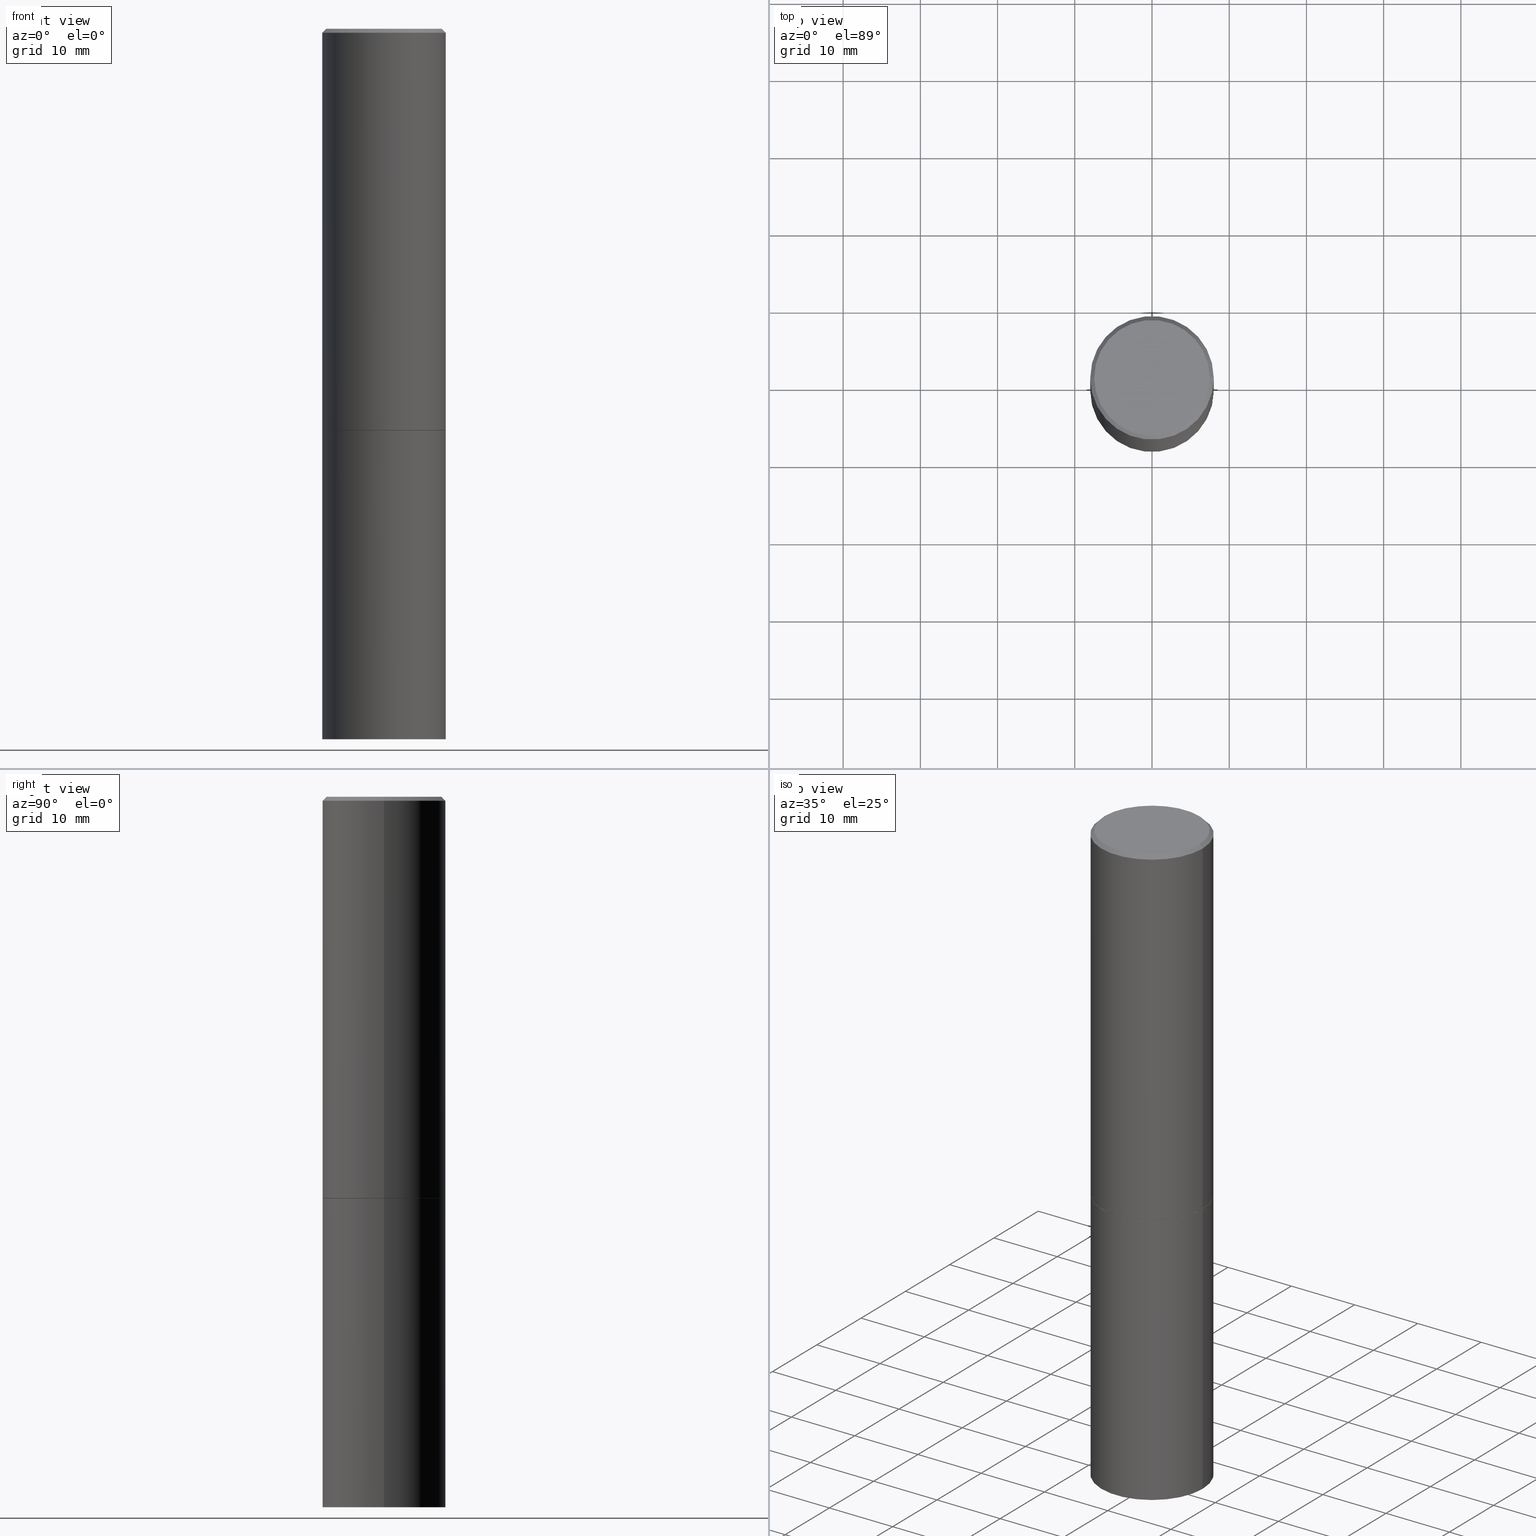
[diagram: canonical four-view strip — front | top / right | iso, engineering-drawing reading convention]
A machine part, canonical four-view strip (front | top / right | iso — engineering-drawing reading convention). The complete STEP part file that produces these views, byte-faithful:
ISO-10303-21;
HEADER;
FILE_DESCRIPTION (( 'STEP AP203' ),
    '1' );
FILE_NAME ('74470.STEP',
    '2024-02-29T11:27:43',
    ( '' ),
    ( '' ),
    'SwSTEP 2.0',
    'SolidWorks 2023',
    '' );
FILE_SCHEMA (( 'CONFIG_CONTROL_DESIGN' ));
ENDSEC;

DATA;
#1 = DIRECTION ( 'NONE',  ( -2.445468806185136597E-29, 3.491481338843145583E-15, 1.000000000000000000 ) ) ;
#2 = CARTESIAN_POINT ( 'NONE',  ( 0.000000000000000000, 0.000000000000000000, 0.000000000000000000 ) ) ;
#3 = DIRECTION ( 'NONE',  ( -2.445468806185136597E-29, 3.491481338843145583E-15, 1.000000000000000000 ) ) ;
#4 = DIRECTION ( 'NONE',  ( -2.445468806185136597E-29, 3.491481338843145583E-15, 1.000000000000000000 ) ) ;
#5 = DIRECTION ( 'NONE',  ( -1.000000000000000000, 6.982962677686265922E-15, -4.876176775795935793E-29 ) ) ;
#6 = CIRCLE ( 'NONE', #120, 0.3149499999999997302 ) ;
#7 = DIRECTION ( 'NONE',  ( -2.438088387897960049E-29, 3.491481338843145188E-15, 1.000000000000000000 ) ) ;
#8 = MECHANICAL_CONTEXT ( 'NONE', #212, 'mechanical' ) ;
#9 = PERSON_AND_ORGANIZATION_ROLE ( 'design_owner' ) ;
#10 = ORIENTED_EDGE ( 'NONE', *, *, #193, .F. ) ;
#11 = DIRECTION ( 'NONE',  ( 0.000000000000000000, 0.000000000000000000, 1.000000000000000000 ) ) ;
#12 = ORIENTED_EDGE ( 'NONE', *, *, #352, .F. ) ;
#13 =( LENGTH_UNIT ( ) NAMED_UNIT ( * ) SI_UNIT ( $, .METRE. ) );
#14 = AXIS2_PLACEMENT_3D ( 'NONE', #284, #310, #199 ) ;
#15 = CALENDAR_DATE ( 2024, 29, 2 ) ;
#16 = APPROVAL_PERSON_ORGANIZATION ( #191, #56, #46 ) ;
#17 = DIRECTION ( 'NONE',  ( 1.000000000000000000, -6.982962677686265922E-15, 4.876176775795935232E-29 ) ) ;
#18 = PERSON_AND_ORGANIZATION ( #34, #247 ) ;
#19 = DIRECTION ( 'NONE',  ( 2.445468806185136597E-29, -3.491481338843145583E-15, -1.000000000000000000 ) ) ;
#20 = EDGE_CURVE ( 'NONE', #244, #129, #348, .T. ) ;
#21 = COORDINATED_UNIVERSAL_TIME_OFFSET ( 5, 0, .BEHIND. ) ;
#22 = DIRECTION ( 'NONE',  ( 1.000000000000000000, -6.982962677686264344E-15, 0.000000000000000000 ) ) ;
#23 = COORDINATED_UNIVERSAL_TIME_OFFSET ( 5, 0, .BEHIND. ) ;
#24 = ORIENTED_EDGE ( 'NONE', *, *, #181, .T. ) ;
#25 = LOCAL_TIME ( 6, 27, 43.00000000000000000, #218 ) ;
#26 = ADVANCED_FACE ( 'NONE', ( #131 ), #232, .T. ) ;
#27 = DIRECTION ( 'NONE',  ( -1.000000000000000000, 6.982962677686265922E-15, -4.876176775795935793E-29 ) ) ;
#28 = DIRECTION ( 'NONE',  ( 1.000000000000000000, -6.982962677686266711E-15, 0.000000000000000000 ) ) ;
#29 = DIRECTION ( 'NONE',  ( -2.445468806185136877E-29, 3.491481338843145188E-15, 1.000000000000000000 ) ) ;
#30 = DIRECTION ( 'NONE',  ( -2.445468806185136597E-29, 3.491481338843145583E-15, 1.000000000000000000 ) ) ;
#31 = ADVANCED_FACE ( 'NONE', ( #81 ), #190, .F. ) ;
#32 = DIRECTION ( 'NONE',  ( 1.000000000000000000, -6.982962677686264344E-15, 0.000000000000000000 ) ) ;
#33 = CYLINDRICAL_SURFACE ( 'NONE', #14, 0.3149499999999998967 ) ;
#34 = PERSON ( 'UNSPECIFIED', 'UNSPECIFIED', 'UNSPECIFIED', ('UNSPECIFIED'), ('UNSPECIFIED'), ('UNSPECIFIED') ) ;
#35 = VECTOR ( 'NONE', #124, 39.37007874015748143 ) ;
#36 = DIRECTION ( 'NONE',  ( 0.7071067811865466846, -7.319954787623252890E-15, -0.7071067811865483499 ) ) ;
#37 = APPROVAL_STATUS ( 'not_yet_approved' ) ;
#38 = EDGE_LOOP ( 'NONE', ( #246, #94 ) ) ;
#39 =( CONVERSION_BASED_UNIT ( 'INCH', #231 ) LENGTH_UNIT ( ) NAMED_UNIT ( #174 ) );
#40 = CIRCLE ( 'NONE', #265, 0.2949499999999997124 ) ;
#41 = ORIENTED_EDGE ( 'NONE', *, *, #305, .F. ) ;
#42 = ORIENTED_EDGE ( 'NONE', *, *, #305, .T. ) ;
#43 = APPLICATION_PROTOCOL_DEFINITION ( 'international standard', 'config_control_design', 1994, #212 ) ;
#44 = ORIENTED_EDGE ( 'NONE', *, *, #364, .F. ) ;
#45 = AXIS2_PLACEMENT_3D ( 'NONE', #270, #19, #50 ) ;
#46 = APPROVAL_ROLE ( '' ) ;
#47 = CARTESIAN_POINT ( 'NONE',  ( -0.3149500000000000077, -1.369195024882416092E-15, -2.046199999999999797 ) ) ;
#48 = LOCAL_TIME ( 6, 27, 43.00000000000000000, #134 ) ;
#49 = VERTEX_POINT ( 'NONE', #133 ) ;
#50 = DIRECTION ( 'NONE',  ( -1.000000000000000000, 6.982962677686266711E-15, 0.000000000000000000 ) ) ;
#51 = VECTOR ( 'NONE', #36, 39.37007874015748143 ) ;
#52 = FACE_OUTER_BOUND ( 'NONE', #68, .T. ) ;
#53 = PLANE ( 'NONE',  #262 ) ;
#54 = DIRECTION ( 'NONE',  ( 1.000000000000000000, -6.982962677686264344E-15, 0.000000000000000000 ) ) ;
#55 = APPLICATION_CONTEXT ( 'configuration controlled 3d designs of mechanical parts and assemblies' ) ;
#56 = APPROVAL ( #184, 'UNSPECIFIED' ) ;
#57 = CARTESIAN_POINT ( 'NONE',  ( -0.3149499999999998967, 2.237854346276434801E-15, -1.549218606675782116E-29 ) ) ;
#58 = DIRECTION ( 'NONE',  ( -0.7071067811866199593, 7.493145998870616062E-15, 0.7071067811864750752 ) ) ;
#59 = AXIS2_PLACEMENT_3D ( 'NONE', #173, #237, #175 ) ;
#60 = CARTESIAN_POINT ( 'NONE',  ( 5.006363740022209999E-29, -7.147760596879685046E-15, -2.047199999999999243 ) ) ;
#61 = CARTESIAN_POINT ( 'NONE',  ( -0.3139500000000000068, -4.917011677960851648E-15, -2.047199999999999243 ) ) ;
#62 = ADVANCED_FACE ( 'NONE', ( #306 ), #53, .F. ) ;
#63 = ORIENTED_EDGE ( 'NONE', *, *, #309, .T. ) ;
#64 = AXIS2_PLACEMENT_3D ( 'NONE', #324, #93, #171 ) ;
#65 = PERSON_AND_ORGANIZATION ( #34, #247 ) ;
#66 = PRODUCT_DEFINITION_SHAPE ( 'NONE', 'NONE',  #117 ) ;
#67 = DIRECTION ( 'NONE',  ( 1.000000000000000000, -6.982962677686266711E-15, 0.000000000000000000 ) ) ;
#68 = EDGE_LOOP ( 'NONE', ( #182, #317, #336, #328 ) ) ;
#69 = AXIS2_PLACEMENT_3D ( 'NONE', #159, #249, #22 ) ;
#70 = CARTESIAN_POINT ( 'NONE',  ( 4.890937612370289799E-31, -6.982962677686315028E-17, -0.02000000000000006981 ) ) ;
#71 = ADVANCED_FACE ( 'NONE', ( #139 ), #356, .T. ) ;
#72 = ORIENTED_EDGE ( 'NONE', *, *, #326, .F. ) ;
#73 = CIRCLE ( 'NONE', #64, 0.3149500000000000077 ) ;
#74 = VERTEX_POINT ( 'NONE', #47 ) ;
#75 = AXIS2_PLACEMENT_3D ( 'NONE', #60, #168, #315 ) ;
#76 = DATE_AND_TIME ( #187, #137 ) ;
#77 = EDGE_LOOP ( 'NONE', ( #10, #24, #78, #238 ) ) ;
#78 = ORIENTED_EDGE ( 'NONE', *, *, #345, .T. ) ;
#79 = DATE_AND_TIME ( #15, #260 ) ;
#80 = ORIENTED_EDGE ( 'NONE', *, *, #160, .T. ) ;
#81 = FACE_OUTER_BOUND ( 'NONE', #272, .T. ) ;
#82 = CARTESIAN_POINT ( 'NONE',  ( 5.006363740022211120E-29, -7.147760596879686624E-15, -2.047199999999999687 ) ) ;
#83 = CONICAL_SURFACE ( 'NONE', #325, 0.3149499999999997302, 0.7853981633974471688 ) ;
#84 = DIRECTION ( 'NONE',  ( -0.7071067811865466846, 2.468850131082247989E-15, -0.7071067811865483499 ) ) ;
#85 = EDGE_CURVE ( 'NONE', #216, #129, #366, .T. ) ;
#86 = FACE_OUTER_BOUND ( 'NONE', #38, .T. ) ;
#87 = AXIS2_PLACEMENT_3D ( 'NONE', #230, #30, #54 ) ;
#88 = CARTESIAN_POINT ( 'NONE',  ( -0.3149500000000000077, -7.659098656808343322E-15, -2.047199999999999687 ) ) ;
#89 = CC_DESIGN_APPROVAL ( #281, ( #117 ) ) ;
#90 = LINE ( 'NONE', #61, #274 ) ;
#91 = CIRCLE ( 'NONE', #298, 0.2949499999999997124 ) ;
#92 = DIRECTION ( 'NONE',  ( 1.000000000000000000, 0.000000000000000000, 0.000000000000000000 ) ) ;
#93 = DIRECTION ( 'NONE',  ( -2.445468806185136597E-29, 3.491481338843145583E-15, 1.000000000000000000 ) ) ;
#94 = ORIENTED_EDGE ( 'NONE', *, *, #181, .F. ) ;
#95 = DIRECTION ( 'NONE',  ( 2.445468806185136597E-29, -3.491481338843145583E-15, -1.000000000000000000 ) ) ;
#96 = ORIENTED_EDGE ( 'NONE', *, *, #319, .T. ) ;
#97 = VECTOR ( 'NONE', #304, 39.37007874015748143 ) ;
#98 = APPROVAL_PERSON_ORGANIZATION ( #18, #226, #269 ) ;
#99 = DATE_AND_TIME ( #267, #25 ) ;
#100 = ORIENTED_EDGE ( 'NONE', *, *, #85, .F. ) ;
#101 = ADVANCED_FACE ( 'NONE', ( #52 ), #276, .T. ) ;
#102 = PERSON_AND_ORGANIZATION_ROLE ( 'creator' ) ;
#103 = ORIENTED_EDGE ( 'NONE', *, *, #352, .T. ) ;
#104 = AXIS2_PLACEMENT_3D ( 'NONE', #2, #155, #17 ) ;
#105 = VERTEX_POINT ( 'NONE', #242 ) ;
#106 = PERSON_AND_ORGANIZATION ( #34, #247 ) ;
#107 = CARTESIAN_POINT ( 'NONE',  ( -0.3149500000000000077, 2.237854346276435590E-15, -1.549218606675782676E-29 ) ) ;
#108 = ORIENTED_EDGE ( 'NONE', *, *, #364, .T. ) ;
#109 = DIRECTION ( 'NONE',  ( 1.000000000000000000, -6.982962677686266711E-15, 4.876176775795936353E-29 ) ) ;
#110 = FACE_OUTER_BOUND ( 'NONE', #77, .T. ) ;
#111 = EDGE_CURVE ( 'NONE', #74, #331, #362, .T. ) ;
#112 = CARTESIAN_POINT ( 'NONE',  ( -0.3149500000000000077, -7.659098656808343322E-15, -3.621999999999999886 ) ) ;
#113 = CIRCLE ( 'NONE', #252, 0.3139500000000000068 ) ;
#114 = DIRECTION ( 'NONE',  ( 1.000000000000000000, -6.982962677686265922E-15, 4.876176775795935793E-29 ) ) ;
#115 = CARTESIAN_POINT ( 'NONE',  ( -0.3139500000000000068, -4.911713223612629246E-15, -2.047199999999999243 ) ) ;
#116 = ADVANCED_BREP_SHAPE_REPRESENTATION ( '74470', ( #157, #293, #313 ), #277 ) ;
#117 = PRODUCT_DEFINITION ( 'UNKNOWN', '', #172, #343 ) ;
#118 = LINE ( 'NONE', #178, #51 ) ;
#119 = LINE ( 'NONE', #152, #35 ) ;
#120 = AXIS2_PLACEMENT_3D ( 'NONE', #223, #338, #28 ) ;
#121 = LINE ( 'NONE', #353, #259 ) ;
#122 = VERTEX_POINT ( 'NONE', #164 ) ;
#123 = ADVANCED_FACE ( 'NONE', ( #110 ), #126, .T. ) ;
#124 = DIRECTION ( 'NONE',  ( 0.7071067811866199593, -2.468850131083015945E-15, 0.7071067811864750752 ) ) ;
#125 = ORIENTED_EDGE ( 'NONE', *, *, #250, .T. ) ;
#126 = CONICAL_SURFACE ( 'NONE', #75, 0.3139500000000000068, 0.7853981633975507526 ) ;
#127 = ADVANCED_FACE ( 'NONE', ( #86 ), #196, .F. ) ;
#128 = PERSON_AND_ORGANIZATION_ROLE ( 'design_supplier' ) ;
#129 = VERTEX_POINT ( 'NONE', #88 ) ;
#130 = COORDINATED_UNIVERSAL_TIME_OFFSET ( 5, 0, .BEHIND. ) ;
#131 = FACE_OUTER_BOUND ( 'NONE', #236, .T. ) ;
#132 = PERSON_AND_ORGANIZATION ( #34, #247 ) ;
#133 = CARTESIAN_POINT ( 'NONE',  ( 0.3139500000000000068, -9.340061729539288903E-15, -2.047199999999999243 ) ) ;
#134 = COORDINATED_UNIVERSAL_TIME_OFFSET ( 5, 0, .BEHIND. ) ;
#135 = ORIENTED_EDGE ( 'NONE', *, *, #316, .T. ) ;
#136 = EDGE_CURVE ( 'NONE', #74, #318, #285, .T. ) ;
#137 = LOCAL_TIME ( 6, 27, 43.00000000000000000, #23 ) ;
#138 = CARTESIAN_POINT ( 'NONE',  ( 5.006363740022211120E-29, -7.147760596879686624E-15, -2.047199999999999687 ) ) ;
#139 = FACE_OUTER_BOUND ( 'NONE', #179, .T. ) ;
#140 = PRODUCT ( '74470', '74470', '', ( #8 ) ) ;
#141 = DIRECTION ( 'NONE',  ( -2.445468806185136597E-29, 3.491481338843145583E-15, 1.000000000000000000 ) ) ;
#142 = AXIS2_PLACEMENT_3D ( 'NONE', #347, #206, #239 ) ;
#143 = CYLINDRICAL_SURFACE ( 'NONE', #177, 0.3149500000000000077 ) ;
#144 = PLANE ( 'NONE',  #322 ) ;
#145 = CARTESIAN_POINT ( 'NONE',  ( -0.3149499999999997302, 2.129454468560424601E-15, -0.02000000000000006981 ) ) ;
#146 = LINE ( 'NONE', #225, #289 ) ;
#147 = DIRECTION ( 'NONE',  ( -2.445468806185136597E-29, 3.491481338843145583E-15, 1.000000000000000000 ) ) ;
#148 = APPROVAL_ROLE ( '' ) ;
#149 = EDGE_LOOP ( 'NONE', ( #158, #300, #80, #135 ) ) ;
#150 = AXIS2_PLACEMENT_3D ( 'NONE', #235, #323, #67 ) ;
#151 = APPROVAL_PERSON_ORGANIZATION ( #65, #281, #148 ) ;
#152 = CARTESIAN_POINT ( 'NONE',  ( 0.3139500000000000068, -9.340061729539288903E-15, -2.047199999999999243 ) ) ;
#153 = CC_DESIGN_PERSON_AND_ORGANIZATION_ASSIGNMENT ( #327, #360, ( #117 ) ) ;
#154 =( NAMED_UNIT ( * ) PLANE_ANGLE_UNIT ( ) SI_UNIT ( $, .RADIAN. ) );
#155 = DIRECTION ( 'NONE',  ( -2.445468806185136597E-29, 3.491481338843145583E-15, 1.000000000000000000 ) ) ;
#156 = APPROVAL_DATE_TIME ( #79, #281 ) ;
#157 = MANIFOLD_SOLID_BREP ( 'Body-Move/Copy2[1]', #215 ) ;
#158 = ORIENTED_EDGE ( 'NONE', *, *, #309, .F. ) ;
#159 = CARTESIAN_POINT ( 'NONE',  ( 5.006363740022209999E-29, -7.147760596879685046E-15, -2.047199999999999243 ) ) ;
#160 = EDGE_CURVE ( 'NONE', #105, #331, #166, .T. ) ;
#161 = ORIENTED_EDGE ( 'NONE', *, *, #297, .T. ) ;
#162 = VERTEX_POINT ( 'NONE', #312 ) ;
#163 = ADVANCED_FACE ( 'NONE', ( #346 ), #33, .T. ) ;
#164 = CARTESIAN_POINT ( 'NONE',  ( 0.3149500000000000077, -1.484542950462716186E-14, -3.621999999999999886 ) ) ;
#165 = AXIS2_PLACEMENT_3D ( 'NONE', #299, #192, #188 ) ;
#166 = LINE ( 'NONE', #145, #227 ) ;
#167 = DIRECTION ( 'NONE',  ( -2.445468806185136877E-29, 3.491481338843145188E-15, 1.000000000000000000 ) ) ;
#168 = DIRECTION ( 'NONE',  ( -2.445468806185136597E-29, 3.491481338843145583E-15, 1.000000000000000000 ) ) ;
#169 = AXIS2_PLACEMENT_3D ( 'NONE', #258, #224, #340 ) ;
#170 = CARTESIAN_POINT ( 'NONE',  ( 0.000000000000000000, 0.000000000000000000, 0.000000000000000000 ) ) ;
#171 = DIRECTION ( 'NONE',  ( 1.000000000000000000, -6.982962677686266711E-15, 0.000000000000000000 ) ) ;
#172 = PRODUCT_DEFINITION_FORMATION_WITH_SPECIFIED_SOURCE ( 'ANY', '', #140, .NOT_KNOWN. ) ;
#173 = CARTESIAN_POINT ( 'NONE',  ( 8.857488016002564476E-29, -1.264614540928987199E-14, -3.621999999999999886 ) ) ;
#174 = DIMENSIONAL_EXPONENTS ( 1.000000000000000000, 0.000000000000000000, 0.000000000000000000, 0.000000000000000000, 0.000000000000000000, 0.000000000000000000, 0.000000000000000000 ) ;
#175 = DIRECTION ( 'NONE',  ( 1.000000000000000000, -6.982962677686263555E-15, 0.000000000000000000 ) ) ;
#176 = VERTEX_POINT ( 'NONE', #115 ) ;
#177 = AXIS2_PLACEMENT_3D ( 'NONE', #308, #4, #109 ) ;
#178 = CARTESIAN_POINT ( 'NONE',  ( 0.3149499999999997302, -2.230543471175005478E-15, -0.02000000000000006981 ) ) ;
#179 = EDGE_LOOP ( 'NONE', ( #273, #296, #44, #351 ) ) ;
#180 = SECURITY_CLASSIFICATION ( '', '', #301 ) ;
#181 = EDGE_CURVE ( 'NONE', #176, #49, #222, .T. ) ;
#182 = ORIENTED_EDGE ( 'NONE', *, *, #111, .F. ) ;
#183 = CC_DESIGN_DATE_AND_TIME_ASSIGNMENT ( #99, #275, ( #180 ) ) ;
#184 = APPROVAL_STATUS ( 'not_yet_approved' ) ;
#185 = ORIENTED_EDGE ( 'NONE', *, *, #20, .T. ) ;
#186 = ADVANCED_FACE ( 'NONE', ( #282 ), #143, .T. ) ;
#187 = CALENDAR_DATE ( 2024, 29, 2 ) ;
#188 = DIRECTION ( 'NONE',  ( -1.000000000000000000, 6.982962677686265922E-15, -4.876176775795935793E-29 ) ) ;
#189 = CALENDAR_DATE ( 2024, 29, 2 ) ;
#190 = PLANE ( 'NONE',  #165 ) ;
#191 = PERSON_AND_ORGANIZATION ( #34, #247 ) ;
#192 = DIRECTION ( 'NONE',  ( 2.438088387897960049E-29, -3.491481338843145188E-15, -1.000000000000000000 ) ) ;
#193 = EDGE_CURVE ( 'NONE', #176, #74, #90, .T. ) ;
#194 = CC_DESIGN_SECURITY_CLASSIFICATION ( #180, ( #172 ) ) ;
#195 = FACE_OUTER_BOUND ( 'NONE', #251, .T. ) ;
#196 = PLANE ( 'NONE',  #198 ) ;
#197 = UNCERTAINTY_MEASURE_WITH_UNIT (LENGTH_MEASURE( 1.000000000000000082E-05 ), #39, 'distance_accuracy_value', 'NONE');
#198 = AXIS2_PLACEMENT_3D ( 'NONE', #254, #7, #114 ) ;
#199 = DIRECTION ( 'NONE',  ( 1.000000000000000000, -6.982962677686265922E-15, 4.876176775795935232E-29 ) ) ;
#200 = CC_DESIGN_PERSON_AND_ORGANIZATION_ASSIGNMENT ( #271, #102, ( #172 ) ) ;
#201 = FACE_OUTER_BOUND ( 'NONE', #321, .T. ) ;
#202 = CARTESIAN_POINT ( 'NONE',  ( -2.087702828670439639E-46, 2.980686340760894400E-32, 8.537024980200822558E-18 ) ) ;
#203 = APPLICATION_PROTOCOL_DEFINITION ( 'international standard', 'config_control_design', 1994, #55 ) ;
#204 = CC_DESIGN_APPROVAL ( #56, ( #180 ) ) ;
#205 = ORIENTED_EDGE ( 'NONE', *, *, #319, .F. ) ;
#206 = DIRECTION ( 'NONE',  ( -2.445468806185136597E-29, 3.491481338843145583E-15, 1.000000000000000000 ) ) ;
#207 = EDGE_LOOP ( 'NONE', ( #125, #295 ) ) ;
#208 = AXIS2_PLACEMENT_3D ( 'NONE', #82, #141, #253 ) ;
#209 = ORIENTED_EDGE ( 'NONE', *, *, #85, .T. ) ;
#210 = CARTESIAN_POINT ( 'NONE',  ( 0.3149499999999997302, -2.230543471175005478E-15, -0.02000000000000006981 ) ) ;
#211 = DATE_TIME_ROLE ( 'creation_date' ) ;
#212 = APPLICATION_CONTEXT ( 'configuration controlled 3d designs of mechanical parts and assemblies' ) ;
#213 = ORIENTED_EDGE ( 'NONE', *, *, #220, .F. ) ;
#214 = ORIENTED_EDGE ( 'NONE', *, *, #20, .F. ) ;
#215 = CLOSED_SHELL ( 'NONE', ( #291, #268, #31, #186 ) ) ;
#216 = VERTEX_POINT ( 'NONE', #112 ) ;
#217 = CIRCLE ( 'NONE', #59, 0.3149500000000000077 ) ;
#218 = COORDINATED_UNIVERSAL_TIME_OFFSET ( 5, 0, .BEHIND. ) ;
#219 = DIRECTION ( 'NONE',  ( 1.000000000000000000, -6.982962677686269866E-15, 0.000000000000000000 ) ) ;
#220 = EDGE_CURVE ( 'NONE', #122, #244, #146, .T. ) ;
#221 = ORIENTED_EDGE ( 'NONE', *, *, #297, .F. ) ;
#222 = CIRCLE ( 'NONE', #87, 0.3139500000000000068 ) ;
#223 = CARTESIAN_POINT ( 'NONE',  ( 4.890937612370289799E-31, -6.982962677686315028E-17, -0.02000000000000006981 ) ) ;
#224 = DIRECTION ( 'NONE',  ( -2.445468806185136597E-29, 3.491481338843145583E-15, 1.000000000000000000 ) ) ;
#225 = CARTESIAN_POINT ( 'NONE',  ( 0.3149500000000000077, -2.199284095337289871E-15, 1.535751875536930130E-29 ) ) ;
#226 = APPROVAL ( #333, 'UNSPECIFIED' ) ;
#227 = VECTOR ( 'NONE', #84, 39.37007874015748143 ) ;
#228 = AXIS2_PLACEMENT_3D ( 'NONE', #138, #1, #219 ) ;
#229 = CARTESIAN_POINT ( 'NONE',  ( 5.006363740022209999E-29, -7.147760596879685046E-15, -2.047199999999999243 ) ) ;
#230 = CARTESIAN_POINT ( 'NONE',  ( 5.006363740022209999E-29, -7.147760596879685046E-15, -2.047199999999999243 ) ) ;
#231 = LENGTH_MEASURE_WITH_UNIT ( LENGTH_MEASURE( 0.02539999999999999897 ), #13 );
#232 = CONICAL_SURFACE ( 'NONE', #45, 0.3149499999999997302, 0.7853981633974471688 ) ;
#233 = DIRECTION ( 'NONE',  ( 1.000000000000000000, -6.982962677686267499E-15, 4.876053491004739391E-29 ) ) ;
#234 = EDGE_LOOP ( 'NONE', ( #108, #292, #221, #72 ) ) ;
#235 = CARTESIAN_POINT ( 'NONE',  ( 4.890937612370289799E-31, -6.982962677686315028E-17, -0.02000000000000006981 ) ) ;
#236 = EDGE_LOOP ( 'NONE', ( #334, #63, #161, #278 ) ) ;
#237 = DIRECTION ( 'NONE',  ( -2.445468806185136597E-29, 3.491481338843145583E-15, 1.000000000000000000 ) ) ;
#238 = ORIENTED_EDGE ( 'NONE', *, *, #136, .F. ) ;
#239 = DIRECTION ( 'NONE',  ( 1.000000000000000000, -6.982962677686263555E-15, 0.000000000000000000 ) ) ;
#240 = VECTOR ( 'NONE', #29, 39.37007874015748143 ) ;
#241 = DATE_AND_TIME ( #335, #48 ) ;
#242 = CARTESIAN_POINT ( 'NONE',  ( -0.2949499999999997124, 2.094539655171993740E-15, 8.537024980186296424E-18 ) ) ;
#243 = EDGE_CURVE ( 'NONE', #49, #176, #113, .T. ) ;
#244 = VERTEX_POINT ( 'NONE', #341 ) ;
#245 = DATE_AND_TIME ( #189, #307 ) ;
#246 = ORIENTED_EDGE ( 'NONE', *, *, #243, .F. ) ;
#247 = ORGANIZATION ( 'UNSPECIFIED', 'UNSPECIFIED', '' ) ;
#248 = SHAPE_DEFINITION_REPRESENTATION ( #66, #116 ) ;
#249 = DIRECTION ( 'NONE',  ( -2.445468806185136597E-29, 3.491481338843145583E-15, 1.000000000000000000 ) ) ;
#250 = EDGE_CURVE ( 'NONE', #105, #162, #91, .T. ) ;
#251 = EDGE_LOOP ( 'NONE', ( #12, #205 ) ) ;
#252 = AXIS2_PLACEMENT_3D ( 'NONE', #229, #3, #32 ) ;
#253 = DIRECTION ( 'NONE',  ( 1.000000000000000000, -6.982962677686269866E-15, 0.000000000000000000 ) ) ;
#254 = CARTESIAN_POINT ( 'NONE',  ( 5.006363740022211680E-29, -7.147760596879688202E-15, -2.047200000000000131 ) ) ;
#255 = CC_DESIGN_PERSON_AND_ORGANIZATION_ASSIGNMENT ( #287, #9, ( #140 ) ) ;
#256 = DIRECTION ( 'NONE',  ( 2.438088387897960049E-29, -3.491481338843145188E-15, -1.000000000000000000 ) ) ;
#257 = CIRCLE ( 'NONE', #150, 0.3149499999999997302 ) ;
#258 = CARTESIAN_POINT ( 'NONE',  ( 5.003918271216025517E-29, -7.144269115540843617E-15, -2.046199999999999797 ) ) ;
#259 = VECTOR ( 'NONE', #288, 39.37007874015748143 ) ;
#260 = LOCAL_TIME ( 6, 27, 43.00000000000000000, #21 ) ;
#261 = DIRECTION ( 'NONE',  ( 1.000000000000000000, -6.982962677686266711E-15, 4.876176775795936353E-29 ) ) ;
#262 = AXIS2_PLACEMENT_3D ( 'NONE', #363, #302, #27 ) ;
#263 = CARTESIAN_POINT ( 'NONE',  ( 0.3149500000000000077, -9.343553210878133488E-15, -2.046199999999999797 ) ) ;
#264 = CC_DESIGN_PERSON_AND_ORGANIZATION_ASSIGNMENT ( #106, #128, ( #172 ) ) ;
#265 = AXIS2_PLACEMENT_3D ( 'NONE', #355, #147, #233 ) ;
#266 = CC_DESIGN_DATE_AND_TIME_ASSIGNMENT ( #76, #211, ( #117 ) ) ;
#267 = CALENDAR_DATE ( 2024, 29, 2 ) ;
#268 = ADVANCED_FACE ( 'NONE', ( #195 ), #144, .T. ) ;
#269 = APPROVAL_ROLE ( '' ) ;
#270 = CARTESIAN_POINT ( 'NONE',  ( 4.890937612370289799E-31, -6.982962677686315028E-17, -0.02000000000000006981 ) ) ;
#271 = PERSON_AND_ORGANIZATION ( #34, #247 ) ;
#272 = EDGE_LOOP ( 'NONE', ( #185, #42 ) ) ;
#273 = ORIENTED_EDGE ( 'NONE', *, *, #243, .T. ) ;
#274 = VECTOR ( 'NONE', #58, 39.37007874015748143 ) ;
#275 = DATE_TIME_ROLE ( 'classification_date' ) ;
#276 = CYLINDRICAL_SURFACE ( 'NONE', #104, 0.3149499999999998967 ) ;
#277 =( GEOMETRIC_REPRESENTATION_CONTEXT ( 3 ) GLOBAL_UNCERTAINTY_ASSIGNED_CONTEXT ( ( #197 ) ) GLOBAL_UNIT_ASSIGNED_CONTEXT ( ( #39, #154, #290 ) ) REPRESENTATION_CONTEXT ( 'NONE', 'WORKASPACE' ) );
#278 = ORIENTED_EDGE ( 'NONE', *, *, #160, .F. ) ;
#279 = CARTESIAN_POINT ( 'NONE',  ( 2.199284095337378223E-15, 0.3149499999999873512, -3.622000000000000774 ) ) ;
#280 = AXIS2_PLACEMENT_3D ( 'NONE', #170, #286, #261 ) ;
#281 = APPROVAL ( #37, 'UNSPECIFIED' ) ;
#282 = FACE_OUTER_BOUND ( 'NONE', #354, .T. ) ;
#283 = DIRECTION ( 'NONE',  ( 1.000000000000000000, -6.982962677686267499E-15, 4.876053491004739391E-29 ) ) ;
#284 = CARTESIAN_POINT ( 'NONE',  ( 0.000000000000000000, 0.000000000000000000, 0.000000000000000000 ) ) ;
#285 = CIRCLE ( 'NONE', #169, 0.3149500000000000077 ) ;
#286 = DIRECTION ( 'NONE',  ( -2.445468806185136597E-29, 3.491481338843145583E-15, 1.000000000000000000 ) ) ;
#287 = PERSON_AND_ORGANIZATION ( #34, #247 ) ;
#288 = DIRECTION ( 'NONE',  ( -2.445468806185136877E-29, 3.491481338843145188E-15, 1.000000000000000000 ) ) ;
#289 = VECTOR ( 'NONE', #167, 39.37007874015748143 ) ;
#290 =( NAMED_UNIT ( * ) SI_UNIT ( $, .STERADIAN. ) SOLID_ANGLE_UNIT ( ) );
#291 = ADVANCED_FACE ( 'NONE', ( #201 ), #314, .T. ) ;
#292 = ORIENTED_EDGE ( 'NONE', *, *, #111, .T. ) ;
#293 = MANIFOLD_SOLID_BREP ( 'Body-Move/Copy2[2]', #311 ) ;
#294 = DIRECTION ( 'NONE',  ( -1.000000000000000000, 6.982962677686266711E-15, 0.000000000000000000 ) ) ;
#295 = ORIENTED_EDGE ( 'NONE', *, *, #332, .T. ) ;
#296 = ORIENTED_EDGE ( 'NONE', *, *, #193, .T. ) ;
#297 = EDGE_CURVE ( 'NONE', #330, #331, #6, .T. ) ;
#298 = AXIS2_PLACEMENT_3D ( 'NONE', #202, #342, #283 ) ;
#299 = CARTESIAN_POINT ( 'NONE',  ( 2.199284095337339175E-15, 0.3149499999999928468, -2.047200000000001019 ) ) ;
#300 = ORIENTED_EDGE ( 'NONE', *, *, #250, .F. ) ;
#301 = SECURITY_CLASSIFICATION_LEVEL ( 'unclassified' ) ;
#302 = DIRECTION ( 'NONE',  ( 2.438088387897960049E-29, -3.491481338843145188E-15, -1.000000000000000000 ) ) ;
#303 = PERSON_AND_ORGANIZATION_ROLE ( 'classification_officer' ) ;
#304 = DIRECTION ( 'NONE',  ( -2.445468806185136877E-29, 3.491481338843145188E-15, 1.000000000000000000 ) ) ;
#305 = EDGE_CURVE ( 'NONE', #129, #244, #329, .T. ) ;
#306 = FACE_OUTER_BOUND ( 'NONE', #207, .T. ) ;
#307 = LOCAL_TIME ( 6, 27, 43.00000000000000000, #130 ) ;
#308 = CARTESIAN_POINT ( 'NONE',  ( 0.000000000000000000, 0.000000000000000000, 0.000000000000000000 ) ) ;
#309 = EDGE_CURVE ( 'NONE', #162, #330, #118, .T. ) ;
#310 = DIRECTION ( 'NONE',  ( -2.445468806185136597E-29, 3.491481338843145583E-15, 1.000000000000000000 ) ) ;
#311 = CLOSED_SHELL ( 'NONE', ( #71, #163, #26, #339, #101, #123, #127, #62 ) ) ;
#312 = CARTESIAN_POINT ( 'NONE',  ( 0.2949499999999997124, -2.127023677808858103E-15, 8.537024980215462707E-18 ) ) ;
#313 = AXIS2_PLACEMENT_3D ( 'NONE', #349, #11, #92 ) ;
#314 = CYLINDRICAL_SURFACE ( 'NONE', #280, 0.3149500000000000077 ) ;
#315 = DIRECTION ( 'NONE',  ( 1.000000000000000000, -6.982962677686264344E-15, 0.000000000000000000 ) ) ;
#316 = EDGE_CURVE ( 'NONE', #331, #330, #257, .T. ) ;
#317 = ORIENTED_EDGE ( 'NONE', *, *, #136, .T. ) ;
#318 = VERTEX_POINT ( 'NONE', #263 ) ;
#319 = EDGE_CURVE ( 'NONE', #216, #122, #337, .T. ) ;
#320 = CARTESIAN_POINT ( 'NONE',  ( -0.3149499999999997302, 2.129454468560424601E-15, -0.02000000000000006981 ) ) ;
#321 = EDGE_LOOP ( 'NONE', ( #103, #209, #214, #213 ) ) ;
#322 = AXIS2_PLACEMENT_3D ( 'NONE', #279, #256, #5 ) ;
#323 = DIRECTION ( 'NONE',  ( -2.445468806185136597E-29, 3.491481338843145583E-15, 1.000000000000000000 ) ) ;
#324 = CARTESIAN_POINT ( 'NONE',  ( 5.003918271216025517E-29, -7.144269115540843617E-15, -2.046199999999999797 ) ) ;
#325 = AXIS2_PLACEMENT_3D ( 'NONE', #70, #95, #294 ) ;
#326 = EDGE_CURVE ( 'NONE', #318, #330, #121, .T. ) ;
#327 = PERSON_AND_ORGANIZATION ( #34, #247 ) ;
#328 = ORIENTED_EDGE ( 'NONE', *, *, #316, .F. ) ;
#329 = CIRCLE ( 'NONE', #208, 0.3149500000000000077 ) ;
#330 = VERTEX_POINT ( 'NONE', #210 ) ;
#331 = VERTEX_POINT ( 'NONE', #320 ) ;
#332 = EDGE_CURVE ( 'NONE', #162, #105, #40, .T. ) ;
#333 = APPROVAL_STATUS ( 'not_yet_approved' ) ;
#334 = ORIENTED_EDGE ( 'NONE', *, *, #332, .F. ) ;
#335 = CALENDAR_DATE ( 2024, 29, 2 ) ;
#336 = ORIENTED_EDGE ( 'NONE', *, *, #326, .T. ) ;
#337 = CIRCLE ( 'NONE', #142, 0.3149500000000000077 ) ;
#338 = DIRECTION ( 'NONE',  ( -2.445468806185136597E-29, 3.491481338843145583E-15, 1.000000000000000000 ) ) ;
#339 = ADVANCED_FACE ( 'NONE', ( #357 ), #83, .T. ) ;
#340 = DIRECTION ( 'NONE',  ( 1.000000000000000000, -6.982962677686266711E-15, 0.000000000000000000 ) ) ;
#341 = CARTESIAN_POINT ( 'NONE',  ( 0.3149500000000000077, -9.347044692216978073E-15, -2.047199999999999687 ) ) ;
#342 = DIRECTION ( 'NONE',  ( -2.445468806185136597E-29, 3.491481338843145583E-15, 1.000000000000000000 ) ) ;
#343 = DESIGN_CONTEXT ( 'detailed design', #55, 'design' ) ;
#344 = CC_DESIGN_APPROVAL ( #226, ( #172 ) ) ;
#345 = EDGE_CURVE ( 'NONE', #49, #318, #119, .T. ) ;
#346 = FACE_OUTER_BOUND ( 'NONE', #234, .T. ) ;
#347 = CARTESIAN_POINT ( 'NONE',  ( 8.857488016002564476E-29, -1.264614540928987199E-14, -3.621999999999999886 ) ) ;
#348 = CIRCLE ( 'NONE', #228, 0.3149500000000000077 ) ;
#349 = CARTESIAN_POINT ( 'NONE',  ( 0.000000000000000000, 0.000000000000000000, 0.000000000000000000 ) ) ;
#350 = CC_DESIGN_PERSON_AND_ORGANIZATION_ASSIGNMENT ( #132, #303, ( #180 ) ) ;
#351 = ORIENTED_EDGE ( 'NONE', *, *, #345, .F. ) ;
#352 = EDGE_CURVE ( 'NONE', #122, #216, #217, .T. ) ;
#353 = CARTESIAN_POINT ( 'NONE',  ( 0.3149499999999998967, -2.199284095337288688E-15, 1.535751875536929289E-29 ) ) ;
#354 = EDGE_LOOP ( 'NONE', ( #100, #96, #359, #41 ) ) ;
#355 = CARTESIAN_POINT ( 'NONE',  ( -2.087702828670439639E-46, 2.980686340760894400E-32, 8.537024980200822558E-18 ) ) ;
#356 = CONICAL_SURFACE ( 'NONE', #69, 0.3139500000000000068, 0.7853981633975507526 ) ;
#357 = FACE_OUTER_BOUND ( 'NONE', #149, .T. ) ;
#358 = APPROVAL_DATE_TIME ( #241, #56 ) ;
#359 = ORIENTED_EDGE ( 'NONE', *, *, #220, .T. ) ;
#360 = PERSON_AND_ORGANIZATION_ROLE ( 'creator' ) ;
#361 = PRODUCT_RELATED_PRODUCT_CATEGORY ( 'detail', '', ( #140 ) ) ;
#362 = LINE ( 'NONE', #57, #240 ) ;
#363 = CARTESIAN_POINT ( 'NONE',  ( 2.059624841783562091E-15, 0.2949499999999997124, -1.025543908401684366E-15 ) ) ;
#364 = EDGE_CURVE ( 'NONE', #318, #74, #73, .T. ) ;
#365 = APPROVAL_DATE_TIME ( #245, #226 ) ;
#366 = LINE ( 'NONE', #107, #97 ) ;
ENDSEC;
END-ISO-10303-21;
